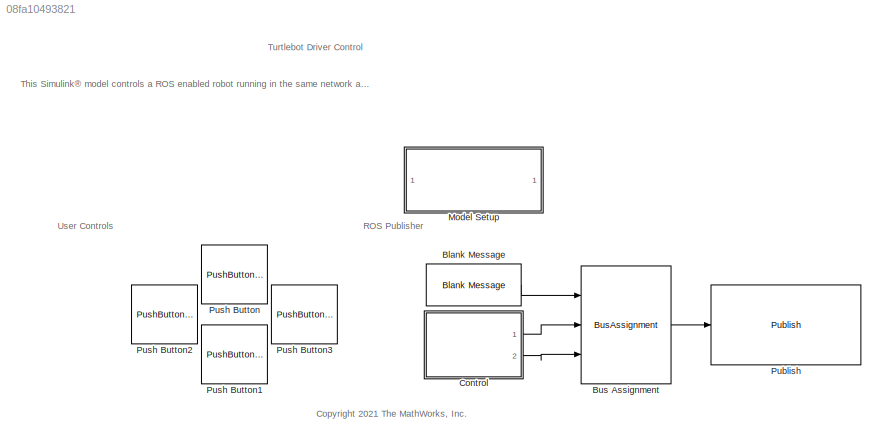
MODEL slx_08fa10493821
KIND model
CONFIG AbsTol = auto
CONFIG EnableMultiTasking = off
CONFIG FixedStep = auto
CONFIG MaxStep = auto
CONFIG MinStep = auto
CONFIG RelTol = 1e-3
CONFIG SampleTimeConstraint = Unconstrained
CONFIG SolverName = FixedStepAuto
CONFIG StartTime = 0.0
CONFIG StopFcn = figHandles = findobj('Type', 'figure');\nfor i = 1: length(figHandles)\n    if contains(figHandles(i).Name, 'Sign Following Robot', 'IgnoreCase', true)\n        close(figHandles(i));\n    end\nend\n\nclear figHandles;
CONFIG StopTime = inf
WORKSPACE source: mxarray member
WORKSPACE SL_ROS_VariableLengthArrays_MaxSizes: object (value not decoded)
BLOCK [Reference] Blank Message  REF=robotlib/Blank Message
  Ports = [0, 1]
  SourceBlock = robotlib/Blank Message
  SourceProductBaseCode = RR
  SourceType = ROS Blank Message
BLOCK [BusAssignment] Bus Assignment
  AssignedSignals = Linear.X,Angular.Z
  NameLocation = top
  Ports = [3, 1]
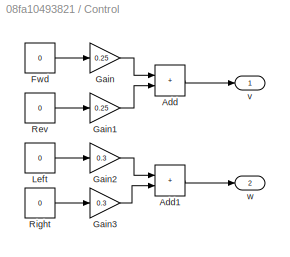
BLOCK [SubSystem] Control
  Ports = [0, 2]
  RequestExecContextInheritance = off
BLOCK [Sum] Control/Add
  IconShape = rectangular
  Ports = [2, 1]
BLOCK [Sum] Control/Add1
  IconShape = rectangular
  Ports = [2, 1]
BLOCK [Constant] Control/Fwd
  Value = 0
BLOCK [Gain] Control/Gain
  Gain = 0.25
BLOCK [Gain] Control/Gain1
  Gain = 0.25
BLOCK [Gain] Control/Gain2
  Gain = 0.3
BLOCK [Gain] Control/Gain3
  Gain = 0.3
BLOCK [Constant] Control/Left
  Value = 0
BLOCK [Constant] Control/Rev
  Value = 0
BLOCK [Constant] Control/Right
  Value = 0
BLOCK [Outport] Control/v
BLOCK [Outport] Control/w
  Port = 2
BLOCK [SubSystem] Model Setup
  Ports = []
  RequestExecContextInheritance = off
BLOCK [Reference] Publish  REF=robotlib/Publish
  Ports = [1]
  SourceBlock = robotlib/Publish
  SourceProductBaseCode = RR
  SourceType = ROS Publish
BLOCK [PushButtonBlock] Push Button
  ButtonText = Fwd
BLOCK [PushButtonBlock] Push Button1
  ButtonText = Rev
  OnValue = -1
BLOCK [PushButtonBlock] Push Button2
  ButtonText = Left
BLOCK [PushButtonBlock] Push Button3
  ButtonText = Right
  OnValue = -1
ANNOTATION (root): This Simulink® model controls a ROS enabled robot running in the same network as the host computer. The model sets the robot /cmd_vel topic interactively using dashboard buttons to drive the robot around a map with the intent of recording lidar scans to later build an environment map. To learn more visit the documentation examples for interacting with ROS using Simulink
ANNOTATION (root): Turtlebot Driver Control
ANNOTATION (root): <copyright redacted>
ANNOTATION (root): ROS Publisher
ANNOTATION (root): User Controls
ANNOTATION Model Setup: Before running the Simulink model, make sure the ROS network requirements have been set appropriately through the Simulink Toolstrip. Note that setting a Node Host IP address is optional and depends on the computer setup.
ANNOTATION Model Setup: ROS Model Setup
LINE Blank Message:1 -> Bus Assignment:1
LINE Bus Assignment:1 -> Publish:1
LINE Control/Add1:1 -> Control/w:1
LINE Control/Add:1 -> Control/v:1
LINE Control/Fwd:1 -> Control/Gain:1
LINE Control/Gain1:1 -> Control/Add:2
LINE Control/Gain2:1 -> Control/Add1:1
LINE Control/Gain3:1 -> Control/Add1:2
LINE Control/Gain:1 -> Control/Add:1
LINE Control/Left:1 -> Control/Gain2:1
LINE Control/Rev:1 -> Control/Gain1:1
LINE Control/Right:1 -> Control/Gain3:1
LINE Control:1 -> Bus Assignment:2
LINE Control:2 -> Bus Assignment:3
